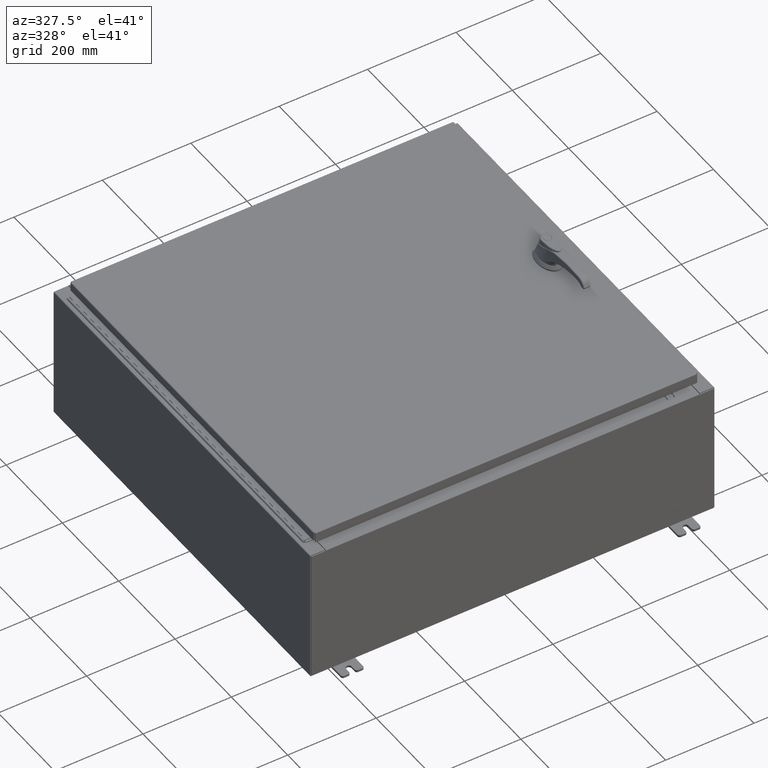
[diagram: clean part render]
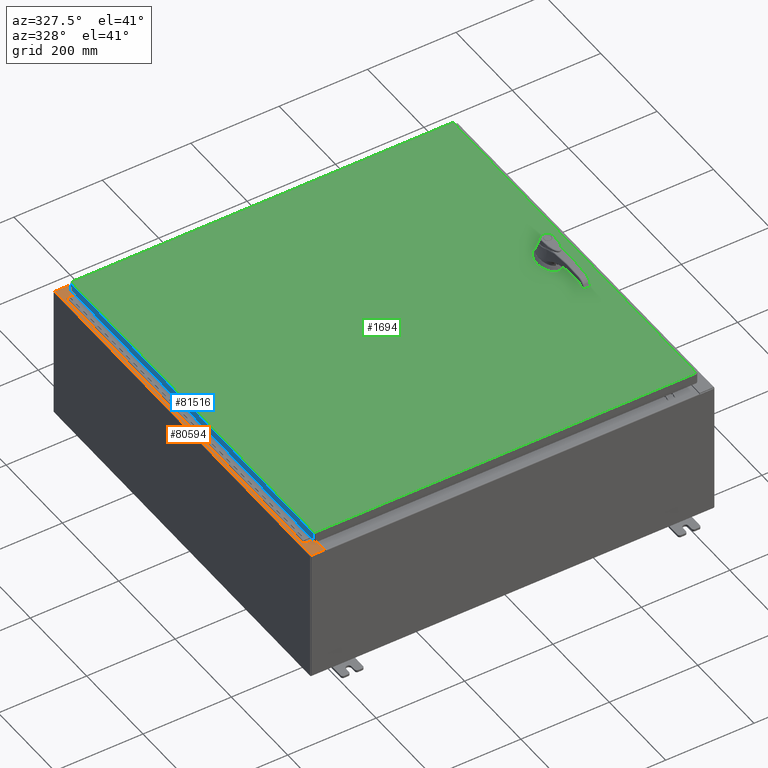
[diagram: same view with three faces highlighted in distinct colors, each labeled with its STEP entity id]
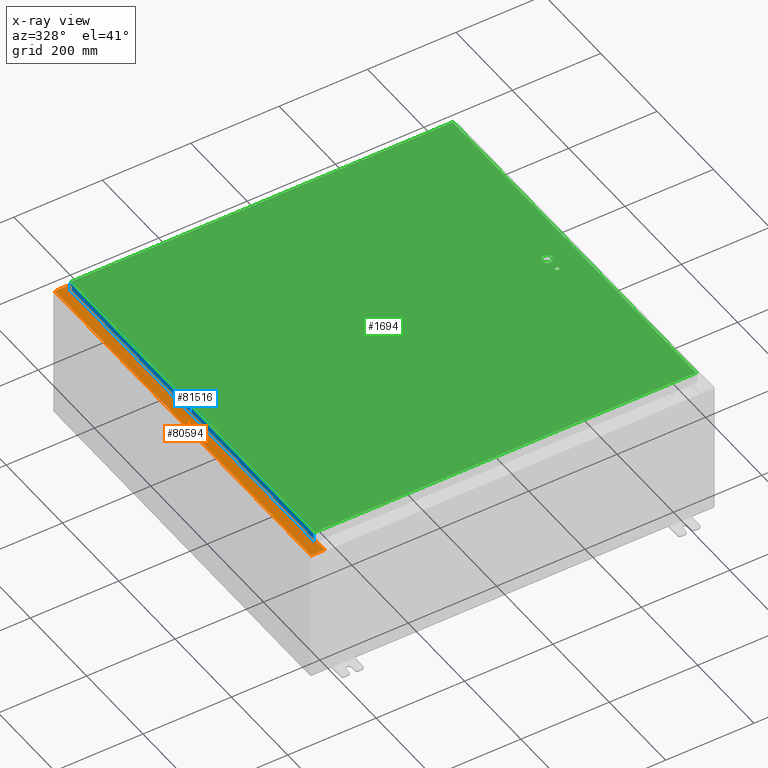
[diagram: x-ray of the same camera — body ghosted, the three highlighted faces saturated]
A machine part, auxiliary view with three faces highlighted in distinct colors.
The next image is the same camera in x-ray (body ghosted, the three faces saturated) — at least one of them is partly hidden behind the body in this view.
Their STEP definitions:

[orange] entity #80594 — the highlighted planar face has unit normal (0, 0, -1).
#503 = DIRECTION ( 'NONE',  ( 1.000000000000000000, -4.340572780400098900E-014, -4.340572780400098900E-014 ) ) ;
#659 = EDGE_CURVE ( 'NONE', #12660, #117053, #11260, .T. ) ;
#716 = EDGE_CURVE ( 'NONE', #112046, #25217, #59637, .T. ) ;
#809 = ORIENTED_EDGE ( 'NONE', *, *, #34759, .T. ) ;
#976 = ORIENTED_EDGE ( 'NONE', *, *, #1497, .F. ) ;
#1497 = EDGE_CURVE ( 'NONE', #25217, #84676, #17245, .T. ) ;
#1508 = CARTESIAN_POINT ( 'NONE',  ( -17.91230000000004100, -17.92530000000000000, 11.92530000000000400 ) ) ;
#2828 = EDGE_CURVE ( 'NONE', #87050, #79325, #57825, .T. ) ;
#6023 = CARTESIAN_POINT ( 'NONE',  ( -16.69970000000004300, 16.63110000000000400, 11.92530000000000900 ) ) ;
#6177 = VERTEX_POINT ( 'NONE', #50374 ) ;
#6425 = AXIS2_PLACEMENT_3D ( 'NONE', #94619, #36730, #104339 ) ;
#6802 = VERTEX_POINT ( 'NONE', #60370 ) ;
#7549 = EDGE_CURVE ( 'NONE', #102534, #7685, #69220, .T. ) ;
#7685 = VERTEX_POINT ( 'NONE', #93445 ) ;
#8187 = DIRECTION ( 'NONE',  ( -1.000000000000000000, 0.0000000000000000000, -7.132762385546384700E-015 ) ) ;
#9720 = ORIENTED_EDGE ( 'NONE', *, *, #659, .F. ) ;
#10757 = CARTESIAN_POINT ( 'NONE',  ( -16.69970000000004300, 16.63110000000000400, 11.92530000000000900 ) ) ;
#11260 = LINE ( 'NONE', #119323, #111129 ) ;
#12660 = VERTEX_POINT ( 'NONE', #70813 ) ;
#15266 = CARTESIAN_POINT ( 'NONE',  ( -16.69970000000004300, -17.92530000000000000, 11.92530000000000900 ) ) ;
#15885 = DIRECTION ( 'NONE',  ( 0.0000000000000000000, 1.000000000000000000, 0.0000000000000000000 ) ) ;
#17245 = LINE ( 'NONE', #86290, #33893 ) ;
#17794 = VECTOR ( 'NONE', #63508, 39.37007874015748100 ) ;
#22970 = DIRECTION ( 'NONE',  ( 1.000000000000000000, -0.0000000000000000000, 7.132762385546384700E-015 ) ) ;
#23258 = LINE ( 'NONE', #51335, #48865 ) ;
#23823 = EDGE_CURVE ( 'NONE', #69832, #84676, #91063, .T. ) ;
#24120 = CARTESIAN_POINT ( 'NONE',  ( -8.532114493236880700E-014, 17.92530000000000000, 11.92530000000013000 ) ) ;
#24167 = ORIENTED_EDGE ( 'NONE', *, *, #716, .F. ) ;
#24207 = DIRECTION ( 'NONE',  ( -1.000000000000000000, 0.0000000000000000000, 0.0000000000000000000 ) ) ;
#25217 = VERTEX_POINT ( 'NONE', #65691 ) ;
#32176 = VECTOR ( 'NONE', #44652, 39.37007874015748100 ) ;
#32267 = DIRECTION ( 'NONE',  ( 1.000000000000000000, 0.0000000000000000000, 0.0000000000000000000 ) ) ;
#32663 = CARTESIAN_POINT ( 'NONE',  ( -8.532114493236880700E-014, -17.92530000000000000, 11.92530000000013000 ) ) ;
#33531 = VECTOR ( 'NONE', #91723, 39.37007874015748100 ) ;
#33673 = ORIENTED_EDGE ( 'NONE', *, *, #46224, .T. ) ;
#33893 = VECTOR ( 'NONE', #503, 39.37007874015748100 ) ;
#34759 = EDGE_CURVE ( 'NONE', #87050, #69832, #106480, .T. ) ;
#36730 = DIRECTION ( 'NONE',  ( -7.132762385546384700E-015, -0.0000000000000000000, 1.000000000000000000 ) ) ;
#36959 = PLANE ( 'NONE',  #86652 ) ;
#39550 = LINE ( 'NONE', #24120, #33531 ) ;
#43930 = CARTESIAN_POINT ( 'NONE',  ( -17.91230000000004100, 17.92530000000000000, 11.92530000000000400 ) ) ;
#44652 = DIRECTION ( 'NONE',  ( -0.0000000000000000000, 1.000000000000000000, -0.0000000000000000000 ) ) ;
#46224 = EDGE_CURVE ( 'NONE', #6177, #79325, #39550, .T. ) ;
#47748 = DIRECTION ( 'NONE',  ( 1.000000000000000000, 0.0000000000000000000, 0.0000000000000000000 ) ) ;
#47938 = DIRECTION ( 'NONE',  ( -0.0000000000000000000, -1.000000000000000000, -0.0000000000000000000 ) ) ;
#48865 = VECTOR ( 'NONE', #80437, 39.37007874015748100 ) ;
#50374 = CARTESIAN_POINT ( 'NONE',  ( -16.69970000000004300, 17.92530000000000000, 11.92530000000000900 ) ) ;
#51115 = VECTOR ( 'NONE', #24207, 39.37007874015748100 ) ;
#51335 = CARTESIAN_POINT ( 'NONE',  ( -16.69970000000004300, 0.0000000000000000000, 11.92530000000000900 ) ) ;
#53777 = FACE_OUTER_BOUND ( 'NONE', #57567, .T. ) ;
#55442 = ORIENTED_EDGE ( 'NONE', *, *, #23823, .T. ) ;
#57186 = CARTESIAN_POINT ( 'NONE',  ( -17.91230000000004100, 17.92530000000000000, 11.92530000000000400 ) ) ;
#57567 = EDGE_LOOP ( 'NONE', ( #97586, #76744, #33673, #90196, #809, #55442, #976, #24167, #58993, #119136, #9720, #82717 ) ) ;
#57825 = LINE ( 'NONE', #43930, #32176 ) ;
#58993 = ORIENTED_EDGE ( 'NONE', *, *, #89397, .F. ) ;
#59637 = CIRCLE ( 'NONE', #85486, 0.01867499999999949400 ) ;
#60370 = CARTESIAN_POINT ( 'NONE',  ( -16.71270000000004400, -16.59375000000000000, 11.92530000000001200 ) ) ;
#61702 = EDGE_CURVE ( 'NONE', #117053, #6802, #117026, .T. ) ;
#62290 = VECTOR ( 'NONE', #15885, 39.37007874015748100 ) ;
#63497 = CIRCLE ( 'NONE', #6425, 0.01867499999999949400 ) ;
#63508 = DIRECTION ( 'NONE',  ( -1.000000000000000000, -4.340572780400098900E-014, 4.340572780400098900E-014 ) ) ;
#63656 = EDGE_CURVE ( 'NONE', #102534, #6177, #23258, .T. ) ;
#65691 = CARTESIAN_POINT ( 'NONE',  ( -16.75005000000004100, -16.63110000000000000, 11.92530000000000900 ) ) ;
#66098 = DIRECTION ( 'NONE',  ( 7.132762385546384700E-015, 0.0000000000000000000, -1.000000000000000000 ) ) ;
#69220 = LINE ( 'NONE', #6023, #17794 ) ;
#69832 = VERTEX_POINT ( 'NONE', #15266 ) ;
#70813 = CARTESIAN_POINT ( 'NONE',  ( -16.75005000000004100, 16.59375000000000000, 11.92530000000000900 ) ) ;
#76744 = ORIENTED_EDGE ( 'NONE', *, *, #63656, .T. ) ;
#76813 = LINE ( 'NONE', #91810, #51115 ) ;
#79325 = VERTEX_POINT ( 'NONE', #57186 ) ;
#80437 = DIRECTION ( 'NONE',  ( 0.0000000000000000000, 1.000000000000000000, 0.0000000000000000000 ) ) ;
#80594 = ADVANCED_FACE ( 'NONE', ( #53777 ), #36959, .F. ) ;
#82717 = ORIENTED_EDGE ( 'NONE', *, *, #108754, .F. ) ;
#84676 = VERTEX_POINT ( 'NONE', #119177 ) ;
#85106 = CARTESIAN_POINT ( 'NONE',  ( -8.532114493236880700E-014, 0.0000000000000000000, 11.92530000000013000 ) ) ;
#85486 = AXIS2_PLACEMENT_3D ( 'NONE', #118906, #115006, #47748 ) ;
#86290 = CARTESIAN_POINT ( 'NONE',  ( -16.75005000000004100, -16.63110000000000000, 11.92530000000001200 ) ) ;
#86652 = AXIS2_PLACEMENT_3D ( 'NONE', #85106, #66098, #8187 ) ;
#87050 = VERTEX_POINT ( 'NONE', #1508 ) ;
#89397 = EDGE_CURVE ( 'NONE', #6802, #112046, #76813, .T. ) ;
#90196 = ORIENTED_EDGE ( 'NONE', *, *, #2828, .F. ) ;
#91063 = LINE ( 'NONE', #122807, #62290 ) ;
#91322 = VECTOR ( 'NONE', #47938, 39.37007874015748100 ) ;
#91723 = DIRECTION ( 'NONE',  ( -1.000000000000000000, 0.0000000000000000000, -7.132762385546384700E-015 ) ) ;
#91810 = CARTESIAN_POINT ( 'NONE',  ( -16.71270000000004400, -16.59375000000000000, 11.92530000000001200 ) ) ;
#93445 = CARTESIAN_POINT ( 'NONE',  ( -16.75005000000004100, 16.63110000000000000, 11.92530000000000900 ) ) ;
#94370 = VECTOR ( 'NONE', #22970, 39.37007874015748100 ) ;
#94619 = CARTESIAN_POINT ( 'NONE',  ( -16.75005000000004100, 16.61242500000000200, 11.92530000000001200 ) ) ;
#97586 = ORIENTED_EDGE ( 'NONE', *, *, #7549, .F. ) ;
#99806 = CARTESIAN_POINT ( 'NONE',  ( -16.71270000000004400, 16.59375000000000000, 11.92530000000001200 ) ) ;
#102534 = VERTEX_POINT ( 'NONE', #10757 ) ;
#104339 = DIRECTION ( 'NONE',  ( 1.000000000000000000, 0.0000000000000000000, 0.0000000000000000000 ) ) ;
#106480 = LINE ( 'NONE', #32663, #94370 ) ;
#108754 = EDGE_CURVE ( 'NONE', #7685, #12660, #63497, .T. ) ;
#111129 = VECTOR ( 'NONE', #32267, 39.37007874015748100 ) ;
#112046 = VERTEX_POINT ( 'NONE', #117825 ) ;
#115006 = DIRECTION ( 'NONE',  ( -7.132762385546384700E-015, -0.0000000000000000000, 1.000000000000000000 ) ) ;
#117026 = LINE ( 'NONE', #124888, #91322 ) ;
#117053 = VERTEX_POINT ( 'NONE', #99806 ) ;
#117825 = CARTESIAN_POINT ( 'NONE',  ( -16.75005000000004100, -16.59375000000000000, 11.92530000000000900 ) ) ;
#118906 = CARTESIAN_POINT ( 'NONE',  ( -16.75005000000004100, -16.61242500000000200, 11.92530000000001200 ) ) ;
#119136 = ORIENTED_EDGE ( 'NONE', *, *, #61702, .F. ) ;
#119177 = CARTESIAN_POINT ( 'NONE',  ( -16.69970000000004300, -16.63110000000000400, 11.92530000000000900 ) ) ;
#119323 = CARTESIAN_POINT ( 'NONE',  ( -16.75005000000004100, 16.59375000000000000, 11.92530000000001200 ) ) ;
#122807 = CARTESIAN_POINT ( 'NONE',  ( -16.69970000000004300, 0.0000000000000000000, 11.92530000000000900 ) ) ;
#124888 = CARTESIAN_POINT ( 'NONE',  ( -16.71270000000004400, 16.59375000000000000, 11.92530000000001200 ) ) ;

[blue] entity #81516 — the highlighted planar face has unit normal (1, -0, -0).
#1167 = VERTEX_POINT ( 'NONE', #22073 ) ;
#11107 = EDGE_CURVE ( 'NONE', #39573, #90279, #71686, .T. ) ;
#20583 = ORIENTED_EDGE ( 'NONE', *, *, #103424, .F. ) ;
#22073 = CARTESIAN_POINT ( 'NONE',  ( -17.07800000000000300, -17.00515786437626200, -0.7949999999999996000 ) ) ;
#25920 = DIRECTION ( 'NONE',  ( 1.278506139541014700E-016, 1.000000000000000000, 1.238552822680358400E-016 ) ) ;
#27059 = ORIENTED_EDGE ( 'NONE', *, *, #105432, .T. ) ;
#30300 = DIRECTION ( 'NONE',  ( -1.278506139541007100E-016, -1.000000000000000000, 1.278506139541014700E-016 ) ) ;
#32123 = CARTESIAN_POINT ( 'NONE',  ( -17.07799999999999900, -17.09399999999999800, -0.08770000000000004200 ) ) ;
#33916 = DIRECTION ( 'NONE',  ( -3.034122441942816100E-015, 6.982962677686265900E-015, -1.000000000000000000 ) ) ;
#34336 = ORIENTED_EDGE ( 'NONE', *, *, #11107, .F. ) ;
#36683 = CARTESIAN_POINT ( 'NONE',  ( -17.07799999999999600, 2.183432785108138600E-015, 5.207755671951099000E-014 ) ) ;
#39573 = VERTEX_POINT ( 'NONE', #62295 ) ;
#44846 = CARTESIAN_POINT ( 'NONE',  ( -17.07799999999999600, 17.00515786437627600, 1.708239394146136100E-013 ) ) ;
#45938 = VECTOR ( 'NONE', #30300, 39.37007874015748100 ) ;
#46360 = DIRECTION ( 'NONE',  ( -3.034122441942816500E-015, 0.0000000000000000000, -1.000000000000000000 ) ) ;
#51197 = CARTESIAN_POINT ( 'NONE',  ( -17.07799999999999900, -17.00515786437626500, -0.08770000000000224800 ) ) ;
#54076 = DIRECTION ( 'NONE',  ( -3.034122441942816100E-015, 6.982962677686265900E-015, -1.000000000000000000 ) ) ;
#55029 = CARTESIAN_POINT ( 'NONE',  ( -17.07800000000000300, -17.09399999999999800, -0.7949999999999997100 ) ) ;
#55272 = AXIS2_PLACEMENT_3D ( 'NONE', #36683, #104287, #46360 ) ;
#59203 = LINE ( 'NONE', #44846, #84920 ) ;
#61950 = EDGE_LOOP ( 'NONE', ( #34336, #27059, #111706, #20583 ) ) ;
#62091 = EDGE_CURVE ( 'NONE', #1167, #71940, #98802, .T. ) ;
#62295 = CARTESIAN_POINT ( 'NONE',  ( -17.07799999999999600, 17.00515786437627600, -0.08770000000000439900 ) ) ;
#64078 = VECTOR ( 'NONE', #54076, 39.37007874015748100 ) ;
#71686 = LINE ( 'NONE', #32123, #45938 ) ;
#71940 = VERTEX_POINT ( 'NONE', #97571 ) ;
#76112 = VECTOR ( 'NONE', #25920, 39.37007874015748100 ) ;
#81516 = ADVANCED_FACE ( 'NONE', ( #124699 ), #113620, .F. ) ;
#84920 = VECTOR ( 'NONE', #33916, 39.37007874015748100 ) ;
#90279 = VERTEX_POINT ( 'NONE', #51197 ) ;
#97571 = CARTESIAN_POINT ( 'NONE',  ( -17.07799999999999600, 17.00515786437628000, -0.7949999999999954900 ) ) ;
#98802 = LINE ( 'NONE', #55029, #76112 ) ;
#103424 = EDGE_CURVE ( 'NONE', #90279, #1167, #118566, .T. ) ;
#104287 = DIRECTION ( 'NONE',  ( 1.000000000000000000, -1.278506139541011000E-016, -3.034122441942816500E-015 ) ) ;
#105432 = EDGE_CURVE ( 'NONE', #39573, #71940, #59203, .T. ) ;
#111706 = ORIENTED_EDGE ( 'NONE', *, *, #62091, .F. ) ;
#113620 = PLANE ( 'NONE',  #55272 ) ;
#118566 = LINE ( 'NONE', #121326, #64078 ) ;
#121326 = CARTESIAN_POINT ( 'NONE',  ( -17.07799999999999900, -17.00515786437626900, -0.07469999999999976700 ) ) ;
#124699 = FACE_OUTER_BOUND ( 'NONE', #61950, .T. ) ;

[green] entity #1694 — the highlighted planar face has unit normal (0, 0, -1).
#543 = DIRECTION ( 'NONE',  ( 1.000000000000000000, -0.0000000000000000000, -0.0000000000000000000 ) ) ;
#1694 = ADVANCED_FACE ( 'NONE', ( #101904, #76152, #124553 ), #43087, .F. ) ;
#4735 = EDGE_CURVE ( 'NONE', #49564, #102616, #81729, .T. ) ;
#8977 = CIRCLE ( 'NONE', #82435, 0.4499999999999168000 ) ;
#9372 = VECTOR ( 'NONE', #96485, 39.37007874015748100 ) ;
#11515 = ORIENTED_EDGE ( 'NONE', *, *, #85391, .F. ) ;
#16003 = CARTESIAN_POINT ( 'NONE',  ( 14.57799999999999900, 0.0000000000000000000, 0.0000000000000000000 ) ) ;
#17290 = DIRECTION ( 'NONE',  ( -0.0000000000000000000, 0.0000000000000000000, 1.000000000000000000 ) ) ;
#17549 = CIRCLE ( 'NONE', #78141, 0.1715000000000011500 ) ;
#17653 = LINE ( 'NONE', #98103, #94775 ) ;
#18156 = CARTESIAN_POINT ( 'NONE',  ( 14.37777262924369000, 0.4029999999999252000, 0.0000000000000000000 ) ) ;
#18852 = ORIENTED_EDGE ( 'NONE', *, *, #104993, .F. ) ;
#20937 = CARTESIAN_POINT ( 'NONE',  ( -16.99029999999999800, -17.00630000000000000, -2.048885995248197400E-016 ) ) ;
#22112 = CARTESIAN_POINT ( 'NONE',  ( 0.0000000000000000000, 0.4029999999999252000, 0.0000000000000000000 ) ) ;
#22123 = VECTOR ( 'NONE', #67741, 39.37007874015748100 ) ;
#22377 = EDGE_LOOP ( 'NONE', ( #47141, #115683, #76173, #59095 ) ) ;
#22681 = CIRCLE ( 'NONE', #78421, 0.4499999999999168000 ) ;
#23058 = CARTESIAN_POINT ( 'NONE',  ( 14.98099999999992900, -0.2002273707563079800, 0.0000000000000000000 ) ) ;
#23802 = CARTESIAN_POINT ( 'NONE',  ( 16.99029999999999800, -17.00629999999999600, -2.048885995248197400E-016 ) ) ;
#24810 = VERTEX_POINT ( 'NONE', #32845 ) ;
#24838 = VERTEX_POINT ( 'NONE', #80944 ) ;
#25738 = DIRECTION ( 'NONE',  ( 1.000000000000000000, 0.0000000000000000000, 0.0000000000000000000 ) ) ;
#26029 = VERTEX_POINT ( 'NONE', #18156 ) ;
#26818 = EDGE_LOOP ( 'NONE', ( #111884, #30622, #44583, #113852, #18852, #116754, #101312, #67544 ) ) ;
#29510 = CARTESIAN_POINT ( 'NONE',  ( 14.77822737075630900, 0.4029999999999252000, 0.0000000000000000000 ) ) ;
#30322 = AXIS2_PLACEMENT_3D ( 'NONE', #76888, #106077, #64172 ) ;
#30512 = DIRECTION ( 'NONE',  ( -1.000000000000000000, -0.0000000000000000000, -0.0000000000000000000 ) ) ;
#30622 = ORIENTED_EDGE ( 'NONE', *, *, #107781, .F. ) ;
#31152 = CARTESIAN_POINT ( 'NONE',  ( 14.17500000000007400, 0.2002273707563079800, 0.0000000000000000000 ) ) ;
#31377 = DIRECTION ( 'NONE',  ( -0.0000000000000000000, 0.0000000000000000000, 1.000000000000000000 ) ) ;
#32845 = CARTESIAN_POINT ( 'NONE',  ( -16.99029999999998400, 17.00630000000000300, -2.048885995248197400E-016 ) ) ;
#33399 = VECTOR ( 'NONE', #122641, 39.37007874015748100 ) ;
#33688 = DIRECTION ( 'NONE',  ( -0.0000000000000000000, 0.0000000000000000000, 1.000000000000000000 ) ) ;
#35145 = LINE ( 'NONE', #94365, #9372 ) ;
#36509 = CARTESIAN_POINT ( 'NONE',  ( 16.99029999999999800, 17.00630000000000700, 8.878505979408856000E-016 ) ) ;
#39453 = CIRCLE ( 'NONE', #40060, 0.1715000000000011500 ) ;
#39634 = DIRECTION ( 'NONE',  ( 1.000000000000000000, 0.0000000000000000000, 0.0000000000000000000 ) ) ;
#39961 = EDGE_CURVE ( 'NONE', #57788, #26029, #69396, .T. ) ;
#40060 = AXIS2_PLACEMENT_3D ( 'NONE', #100422, #42514, #110153 ) ;
#40372 = DIRECTION ( 'NONE',  ( 0.0000000000000000000, 1.000000000000000000, 0.0000000000000000000 ) ) ;
#41563 = EDGE_CURVE ( 'NONE', #24810, #64528, #47752, .T. ) ;
#42514 = DIRECTION ( 'NONE',  ( -0.0000000000000000000, 0.0000000000000000000, 1.000000000000000000 ) ) ;
#43087 = PLANE ( 'NONE',  #30322 ) ;
#43695 = VECTOR ( 'NONE', #62202, 39.37007874015748100 ) ;
#43725 = DIRECTION ( 'NONE',  ( -0.0000000000000000000, 0.0000000000000000000, 1.000000000000000000 ) ) ;
#44583 = ORIENTED_EDGE ( 'NONE', *, *, #45007, .F. ) ;
#45007 = EDGE_CURVE ( 'NONE', #98101, #85378, #80478, .T. ) ;
#46525 = CARTESIAN_POINT ( 'NONE',  ( 14.74950000000000100, -1.338000000000000100, 0.0000000000000000000 ) ) ;
#47141 = ORIENTED_EDGE ( 'NONE', *, *, #105074, .T. ) ;
#47752 = LINE ( 'NONE', #96470, #22123 ) ;
#48443 = EDGE_CURVE ( 'NONE', #49564, #57788, #8977, .T. ) ;
#49564 = VERTEX_POINT ( 'NONE', #95712 ) ;
#52691 = CIRCLE ( 'NONE', #121223, 0.4499999999999168000 ) ;
#54999 = CIRCLE ( 'NONE', #124177, 0.4499999999999168000 ) ;
#57065 = ORIENTED_EDGE ( 'NONE', *, *, #73036, .F. ) ;
#57250 = EDGE_CURVE ( 'NONE', #89845, #24810, #17653, .T. ) ;
#57788 = VERTEX_POINT ( 'NONE', #29510 ) ;
#59095 = ORIENTED_EDGE ( 'NONE', *, *, #41563, .T. ) ;
#62202 = DIRECTION ( 'NONE',  ( -1.000000000000000000, 0.0000000000000000000, 0.0000000000000000000 ) ) ;
#63071 = CARTESIAN_POINT ( 'NONE',  ( 14.37777262924369000, -0.4029999999999252000, 0.0000000000000000000 ) ) ;
#64172 = DIRECTION ( 'NONE',  ( -1.000000000000000000, 0.0000000000000000000, -0.0000000000000000000 ) ) ;
#64528 = VERTEX_POINT ( 'NONE', #20937 ) ;
#67544 = ORIENTED_EDGE ( 'NONE', *, *, #48443, .F. ) ;
#67741 = DIRECTION ( 'NONE',  ( 0.0000000000000000000, -1.000000000000000000, 0.0000000000000000000 ) ) ;
#67758 = CARTESIAN_POINT ( 'NONE',  ( -16.99029999999999800, -17.00630000000000000, -2.048885995248197400E-016 ) ) ;
#68406 = CARTESIAN_POINT ( 'NONE',  ( 0.0000000000000000000, -0.4029999999999252000, 0.0000000000000000000 ) ) ;
#69396 = LINE ( 'NONE', #22112, #43695 ) ;
#71848 = VECTOR ( 'NONE', #40372, 39.37007874015748100 ) ;
#73036 = EDGE_CURVE ( 'NONE', #95365, #24838, #17549, .T. ) ;
#75152 = CARTESIAN_POINT ( 'NONE',  ( 14.57799999999999900, 0.0000000000000000000, 0.0000000000000000000 ) ) ;
#76152 = FACE_OUTER_BOUND ( 'NONE', #22377, .T. ) ;
#76173 = ORIENTED_EDGE ( 'NONE', *, *, #57250, .T. ) ;
#76888 = CARTESIAN_POINT ( 'NONE',  ( 0.0000000000000000000, 0.0000000000000000000, 0.0000000000000000000 ) ) ;
#77468 = VECTOR ( 'NONE', #39634, 39.37007874015748100 ) ;
#77899 = CARTESIAN_POINT ( 'NONE',  ( 14.17500000000007400, -0.2002273707563079800, 0.0000000000000000000 ) ) ;
#78141 = AXIS2_PLACEMENT_3D ( 'NONE', #91582, #33688, #101285 ) ;
#78421 = AXIS2_PLACEMENT_3D ( 'NONE', #16003, #83558, #25738 ) ;
#78804 = CARTESIAN_POINT ( 'NONE',  ( 16.99029999999999800, -17.00629999999999600, -2.048885995248197400E-016 ) ) ;
#80399 = VECTOR ( 'NONE', #543, 39.37007874015748100 ) ;
#80478 = LINE ( 'NONE', #68406, #77468 ) ;
#80944 = CARTESIAN_POINT ( 'NONE',  ( 14.40649999999999800, -1.338000000000000100, 0.0000000000000000000 ) ) ;
#81125 = EDGE_CURVE ( 'NONE', #121928, #89845, #97531, .T. ) ;
#81729 = LINE ( 'NONE', #122787, #33399 ) ;
#82435 = AXIS2_PLACEMENT_3D ( 'NONE', #75152, #17290, #84857 ) ;
#83558 = DIRECTION ( 'NONE',  ( -0.0000000000000000000, 0.0000000000000000000, 1.000000000000000000 ) ) ;
#84857 = DIRECTION ( 'NONE',  ( 1.000000000000000000, 0.0000000000000000000, 0.0000000000000000000 ) ) ;
#85378 = VERTEX_POINT ( 'NONE', #119458 ) ;
#85391 = EDGE_CURVE ( 'NONE', #24838, #95365, #39453, .T. ) ;
#86822 = EDGE_LOOP ( 'NONE', ( #57065, #11515 ) ) ;
#87558 = EDGE_CURVE ( 'NONE', #26029, #121296, #52691, .T. ) ;
#89256 = CARTESIAN_POINT ( 'NONE',  ( 14.57799999999999900, 0.0000000000000000000, 0.0000000000000000000 ) ) ;
#89845 = VERTEX_POINT ( 'NONE', #36509 ) ;
#91582 = CARTESIAN_POINT ( 'NONE',  ( 14.57799999999999900, -1.338000000000000100, 0.0000000000000000000 ) ) ;
#94365 = CARTESIAN_POINT ( 'NONE',  ( 14.17500000000007400, 0.0000000000000000000, 0.0000000000000000000 ) ) ;
#94775 = VECTOR ( 'NONE', #30512, 39.37007874015748100 ) ;
#95365 = VERTEX_POINT ( 'NONE', #46525 ) ;
#95712 = CARTESIAN_POINT ( 'NONE',  ( 14.98099999999992700, 0.2002273707563075900, 0.0000000000000000000 ) ) ;
#96470 = CARTESIAN_POINT ( 'NONE',  ( -16.99029999999998400, 17.00630000000000300, -2.048885995248197400E-016 ) ) ;
#96485 = DIRECTION ( 'NONE',  ( 0.0000000000000000000, -1.000000000000000000, 0.0000000000000000000 ) ) ;
#97531 = LINE ( 'NONE', #78804, #71848 ) ;
#98101 = VERTEX_POINT ( 'NONE', #63071 ) ;
#98103 = CARTESIAN_POINT ( 'NONE',  ( 16.99029999999999800, 17.00630000000000700, 8.878505979408856000E-016 ) ) ;
#98956 = DIRECTION ( 'NONE',  ( 1.000000000000000000, 0.0000000000000000000, 0.0000000000000000000 ) ) ;
#100422 = CARTESIAN_POINT ( 'NONE',  ( 14.57799999999999900, -1.338000000000000100, 0.0000000000000000000 ) ) ;
#101285 = DIRECTION ( 'NONE',  ( 1.000000000000000000, 0.0000000000000000000, 0.0000000000000000000 ) ) ;
#101312 = ORIENTED_EDGE ( 'NONE', *, *, #39961, .F. ) ;
#101635 = CARTESIAN_POINT ( 'NONE',  ( 14.57799999999999900, 0.0000000000000000000, 0.0000000000000000000 ) ) ;
#101904 = FACE_BOUND ( 'NONE', #86822, .T. ) ;
#102616 = VERTEX_POINT ( 'NONE', #23058 ) ;
#104993 = EDGE_CURVE ( 'NONE', #121296, #115853, #35145, .T. ) ;
#105074 = EDGE_CURVE ( 'NONE', #64528, #121928, #109219, .T. ) ;
#106077 = DIRECTION ( 'NONE',  ( 0.0000000000000000000, 0.0000000000000000000, -1.000000000000000000 ) ) ;
#107781 = EDGE_CURVE ( 'NONE', #85378, #102616, #22681, .T. ) ;
#109219 = LINE ( 'NONE', #67758, #80399 ) ;
#110153 = DIRECTION ( 'NONE',  ( 1.000000000000000000, 0.0000000000000000000, 0.0000000000000000000 ) ) ;
#111363 = DIRECTION ( 'NONE',  ( 1.000000000000000000, 0.0000000000000000000, 0.0000000000000000000 ) ) ;
#111884 = ORIENTED_EDGE ( 'NONE', *, *, #4735, .T. ) ;
#113852 = ORIENTED_EDGE ( 'NONE', *, *, #114246, .F. ) ;
#114246 = EDGE_CURVE ( 'NONE', #115853, #98101, #54999, .T. ) ;
#115683 = ORIENTED_EDGE ( 'NONE', *, *, #81125, .T. ) ;
#115853 = VERTEX_POINT ( 'NONE', #77899 ) ;
#116754 = ORIENTED_EDGE ( 'NONE', *, *, #87558, .F. ) ;
#119458 = CARTESIAN_POINT ( 'NONE',  ( 14.77822737075630900, -0.4029999999999252000, 0.0000000000000000000 ) ) ;
#121223 = AXIS2_PLACEMENT_3D ( 'NONE', #89256, #31377, #98956 ) ;
#121296 = VERTEX_POINT ( 'NONE', #31152 ) ;
#121928 = VERTEX_POINT ( 'NONE', #23802 ) ;
#122641 = DIRECTION ( 'NONE',  ( 5.457491617345625800E-015, -1.000000000000000000, 0.0000000000000000000 ) ) ;
#122787 = CARTESIAN_POINT ( 'NONE',  ( 14.98099999999992700, 8.175868191945441800E-014, 0.0000000000000000000 ) ) ;
#124177 = AXIS2_PLACEMENT_3D ( 'NONE', #101635, #43725, #111363 ) ;
#124553 = FACE_BOUND ( 'NONE', #26818, .T. ) ;